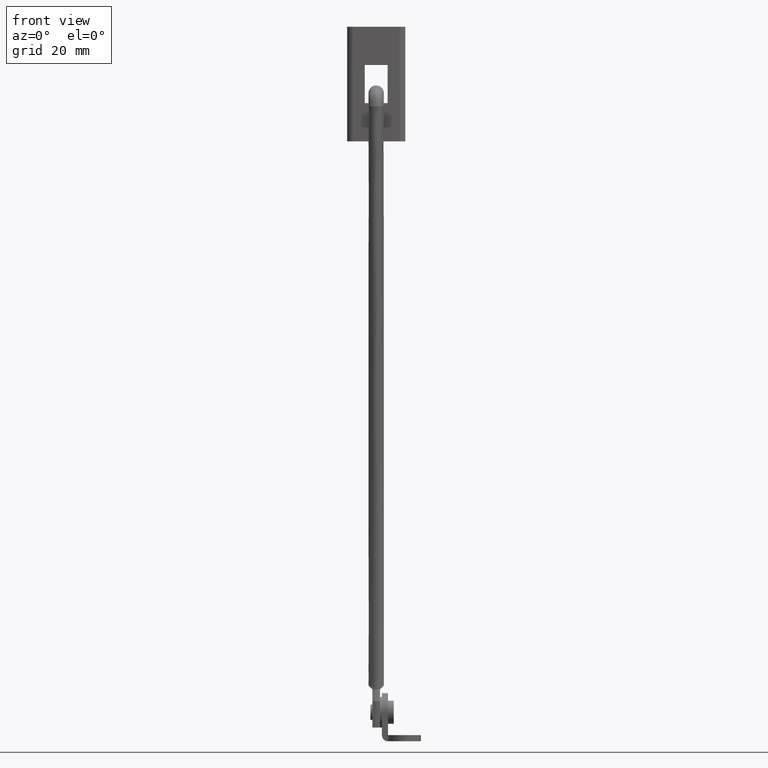
[diagram: clean part render]
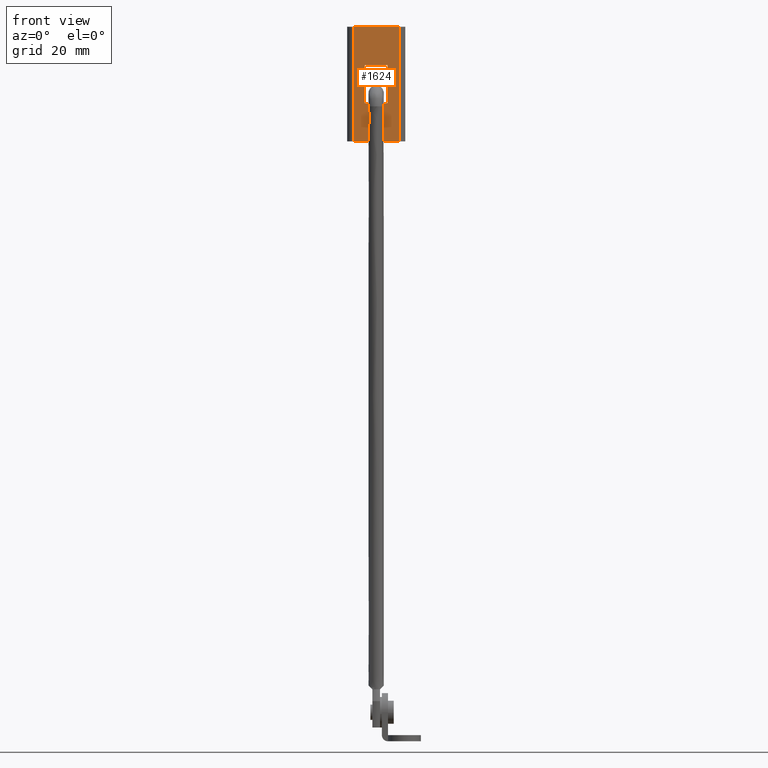
[diagram: same view with one face highlighted and labeled with its STEP entity id]
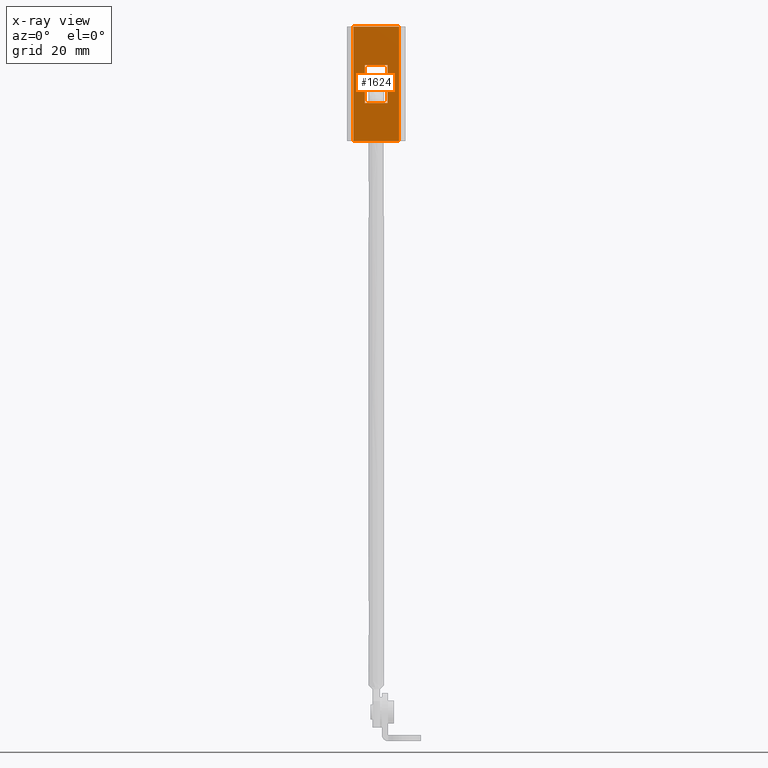
[diagram: x-ray of the same camera — body ghosted, the highlighted face saturated]
A machine part, front view. The second image highlights one B-rep face of the part: STEP entity #1624.
The next image is the same camera in x-ray: the body ghosted, the highlighted face saturated — about 0% of this face is hidden behind the body in this view.
In plain terms, the highlighted face is a freeform B-spline surface patch.
Its self-contained STEP definition (entity closure, byte-faithful):
#1195=CARTESIAN_POINT('',(-13.400000000000000,2.0,156.930137000000000));
#1196=VERTEX_POINT('',#1195);
#1212=CARTESIAN_POINT('',(-13.400000000000000,2.0,186.930137000000000));
#1213=VERTEX_POINT('',#1212);
#1214=CARTESIAN_POINT('',(-13.400000000000000,2.0,186.930137000000000));
#1215=CARTESIAN_POINT('',(-13.400000000000000,2.0,156.930137000000000));
#1216=QUASI_UNIFORM_CURVE('',1,(#1214,#1215),.UNSPECIFIED.,.F.,.U.);
#1217=EDGE_CURVE('',#1213,#1196,#1216,.T.);
#1258=CARTESIAN_POINT('',(-1.400003000000000,2.0,156.930137000000000));
#1259=VERTEX_POINT('',#1258);
#1280=CARTESIAN_POINT('',(-1.400003000000000,2.0,186.930137000000000));
#1281=VERTEX_POINT('',#1280);
#1295=CARTESIAN_POINT('',(-1.400003000000000,2.0,156.930137000000000));
#1296=CARTESIAN_POINT('',(-1.400003000000000,2.0,186.930137000000000));
#1297=QUASI_UNIFORM_CURVE('',1,(#1295,#1296),.UNSPECIFIED.,.F.,.U.);
#1298=EDGE_CURVE('',#1259,#1281,#1297,.T.);
#1308=CARTESIAN_POINT('',(-4.399993000000195,2.0,166.930137000000000));
#1309=VERTEX_POINT('',#1308);
#1310=CARTESIAN_POINT('',(-10.400001000000000,2.0,166.930137000000000));
#1311=VERTEX_POINT('',#1310);
#1312=CARTESIAN_POINT('',(-4.399993000000195,2.0,166.930137000000000));
#1313=CARTESIAN_POINT('',(-10.400001000000000,2.0,166.930137000000000));
#1314=QUASI_UNIFORM_CURVE('',1,(#1312,#1313),.UNSPECIFIED.,.F.,.U.);
#1315=EDGE_CURVE('',#1309,#1311,#1314,.T.);
#1344=CARTESIAN_POINT('',(-4.399993000000195,2.0,176.930137000000000));
#1345=VERTEX_POINT('',#1344);
#1346=CARTESIAN_POINT('',(-4.399993000000195,2.0,176.930137000000000));
#1347=CARTESIAN_POINT('',(-4.399993000000195,2.0,166.930137000000000));
#1348=QUASI_UNIFORM_CURVE('',1,(#1346,#1347),.UNSPECIFIED.,.F.,.U.);
#1349=EDGE_CURVE('',#1345,#1309,#1348,.T.);
#1372=CARTESIAN_POINT('',(-10.400001000000000,2.0,176.930137000000000));
#1373=VERTEX_POINT('',#1372);
#1374=CARTESIAN_POINT('',(-10.400001000000000,2.0,176.930137000000000));
#1375=CARTESIAN_POINT('',(-4.399993000000195,2.0,176.930137000000000));
#1376=QUASI_UNIFORM_CURVE('',1,(#1374,#1375),.UNSPECIFIED.,.F.,.U.);
#1377=EDGE_CURVE('',#1373,#1345,#1376,.T.);
#1400=CARTESIAN_POINT('',(-10.400001000000000,2.0,166.930137000000000));
#1401=CARTESIAN_POINT('',(-10.400001000000000,2.0,176.930137000000000));
#1402=QUASI_UNIFORM_CURVE('',1,(#1400,#1401),.UNSPECIFIED.,.F.,.U.);
#1403=EDGE_CURVE('',#1311,#1373,#1402,.T.);
#1420=CARTESIAN_POINT('',(-1.400003000000000,2.0,186.930137000000000));
#1421=CARTESIAN_POINT('',(-13.400000000000000,2.0,186.930137000000000));
#1422=QUASI_UNIFORM_CURVE('',1,(#1420,#1421),.UNSPECIFIED.,.F.,.U.);
#1423=EDGE_CURVE('',#1281,#1213,#1422,.T.);
#1490=CARTESIAN_POINT('',(-1.400003000000000,2.0,156.930137000000000));
#1491=CARTESIAN_POINT('',(-13.400000000000000,2.0,156.930137000000000));
#1492=QUASI_UNIFORM_CURVE('',1,(#1490,#1491),.UNSPECIFIED.,.F.,.U.);
#1493=EDGE_CURVE('',#1259,#1196,#1492,.T.);
#1607=CARTESIAN_POINT('',(-13.999399488949519,2.0,155.431630164788200));
#1608=CARTESIAN_POINT('',(-13.999399488949519,2.0,188.428629083062300));
#1609=CARTESIAN_POINT('',(-0.800602867320477,2.0,155.431630164788200));
#1610=CARTESIAN_POINT('',(-0.800602867320477,2.0,188.428629083062300));
#1611=B_SPLINE_SURFACE_WITH_KNOTS('',1,1,((#1607,#1609),(#1608,#1610)),.UNSPECIFIED.,.F.,.F.,.U.,(2,2),(2,2),(0.0,32.996998918274073),(0.0,13.198796621629050),.UNSPECIFIED.);
#1612=ORIENTED_EDGE('',*,*,#1493,.F.);
#1613=ORIENTED_EDGE('',*,*,#1298,.T.);
#1614=ORIENTED_EDGE('',*,*,#1423,.T.);
#1615=ORIENTED_EDGE('',*,*,#1217,.T.);
#1616=EDGE_LOOP('',(#1612,#1613,#1614,#1615));
#1617=FACE_OUTER_BOUND('',#1616,.T.);
#1618=ORIENTED_EDGE('',*,*,#1403,.T.);
#1619=ORIENTED_EDGE('',*,*,#1377,.T.);
#1620=ORIENTED_EDGE('',*,*,#1349,.T.);
#1621=ORIENTED_EDGE('',*,*,#1315,.T.);
#1622=EDGE_LOOP('',(#1618,#1619,#1620,#1621));
#1623=FACE_BOUND('',#1622,.T.);
#1624=ADVANCED_FACE('',(#1617,#1623),#1611,.F.);